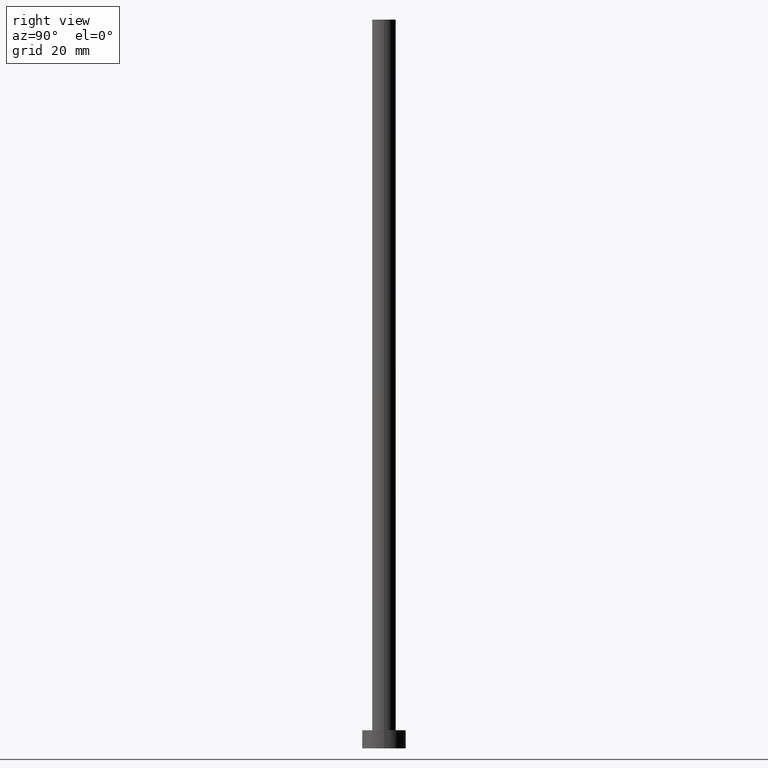
[diagram: clean part render]
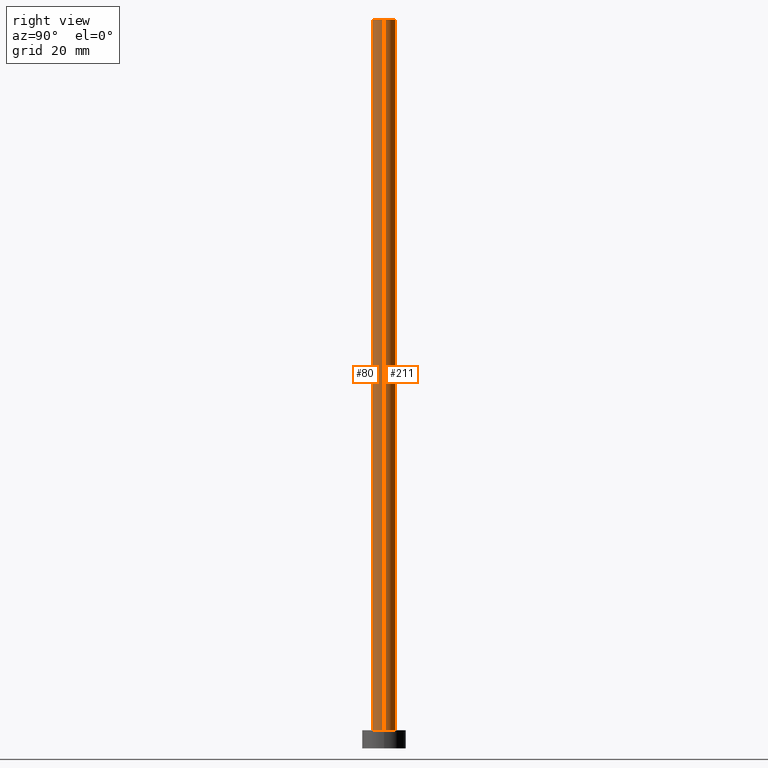
[diagram: same view with one multi-face feature highlighted, each face labeled with its STEP entity id]
A machine part, right view. The highlighted faces form ONE feature: a constant-radius fillet chain: 2 tangent blend faces with common blend radius 3.25 mm. The faces share edges in the B-rep.
Their STEP definitions:
[1] entity #211 (Cylinder):
#2 = DIRECTION ( 'NONE',  ( -0.000000000000000000, -0.000000000000000000, -1.000000000000000000 ) ) ;
#7 = LINE ( 'NONE', #101, #243 ) ;
#10 = DIRECTION ( 'NONE',  ( -0.000000000000000000, -0.000000000000000000, -1.000000000000000000 ) ) ;
#15 = DIRECTION ( 'NONE',  ( 0.000000000000000000, 0.000000000000000000, 1.000000000000000000 ) ) ;
#26 = LINE ( 'NONE', #190, #117 ) ;
#28 = VERTEX_POINT ( 'NONE', #96 ) ;
#32 = VERTEX_POINT ( 'NONE', #91 ) ;
#37 = CARTESIAN_POINT ( 'NONE',  ( 3.250000000000000444, 3.980102097228898231E-16, 5.000000000000000000 ) ) ;
#38 = DIRECTION ( 'NONE',  ( -0.000000000000000000, -0.000000000000000000, -1.000000000000000000 ) ) ;
#44 = AXIS2_PLACEMENT_3D ( 'NONE', #99, #10, #79 ) ;
#62 = ORIENTED_EDGE ( 'NONE', *, *, #197, .F. ) ;
#74 = DIRECTION ( 'NONE',  ( 1.000000000000000000, 0.000000000000000000, 0.000000000000000000 ) ) ;
#79 = DIRECTION ( 'NONE',  ( -1.000000000000000000, 0.000000000000000000, 0.000000000000000000 ) ) ;
#81 = EDGE_CURVE ( 'NONE', #246, #32, #136, .T. ) ;
#82 = ORIENTED_EDGE ( 'NONE', *, *, #90, .F. ) ;
#87 = ORIENTED_EDGE ( 'NONE', *, *, #81, .T. ) ;
#90 = EDGE_CURVE ( 'NONE', #161, #28, #242, .T. ) ;
#91 = CARTESIAN_POINT ( 'NONE',  ( -3.250000000000000444, 0.000000000000000000, 5.000000000000000000 ) ) ;
#96 = CARTESIAN_POINT ( 'NONE',  ( -3.250000000000000444, 0.000000000000000000, 200.0000000000000000 ) ) ;
#97 = CARTESIAN_POINT ( 'NONE',  ( 0.000000000000000000, 0.000000000000000000, 5.000000000000000000 ) ) ;
#99 = CARTESIAN_POINT ( 'NONE',  ( 0.000000000000000000, 0.000000000000000000, 200.0000000000000000 ) ) ;
#101 = CARTESIAN_POINT ( 'NONE',  ( 3.250000000000000444, 3.980102097228898231E-16, 200.0000000000000000 ) ) ;
#117 = VECTOR ( 'NONE', #2, 1000.000000000000000 ) ;
#128 = CARTESIAN_POINT ( 'NONE',  ( 0.000000000000000000, 0.000000000000000000, 200.0000000000000000 ) ) ;
#136 = CIRCLE ( 'NONE', #166, 3.250000000000000444 ) ;
#138 = EDGE_LOOP ( 'NONE', ( #82, #177, #87, #62 ) ) ;
#161 = VERTEX_POINT ( 'NONE', #185 ) ;
#164 = DIRECTION ( 'NONE',  ( 0.000000000000000000, 0.000000000000000000, 1.000000000000000000 ) ) ;
#166 = AXIS2_PLACEMENT_3D ( 'NONE', #97, #15, #255 ) ;
#171 = FACE_OUTER_BOUND ( 'NONE', #138, .T. ) ;
#177 = ORIENTED_EDGE ( 'NONE', *, *, #184, .T. ) ;
#184 = EDGE_CURVE ( 'NONE', #161, #246, #7, .T. ) ;
#185 = CARTESIAN_POINT ( 'NONE',  ( 3.250000000000000444, 3.980102097228898231E-16, 200.0000000000000000 ) ) ;
#190 = CARTESIAN_POINT ( 'NONE',  ( -3.250000000000000444, 0.000000000000000000, 200.0000000000000000 ) ) ;
#191 = AXIS2_PLACEMENT_3D ( 'NONE', #128, #164, #74 ) ;
#197 = EDGE_CURVE ( 'NONE', #28, #32, #26, .T. ) ;
#211 = ADVANCED_FACE ( 'NONE', ( #171 ), #241, .T. ) ;
#241 = CYLINDRICAL_SURFACE ( 'NONE', #44, 3.250000000000000444 ) ;
#242 = CIRCLE ( 'NONE', #191, 3.250000000000000444 ) ;
#243 = VECTOR ( 'NONE', #38, 1000.000000000000000 ) ;
#246 = VERTEX_POINT ( 'NONE', #37 ) ;
#255 = DIRECTION ( 'NONE',  ( 1.000000000000000000, 0.000000000000000000, 0.000000000000000000 ) ) ;
[2] entity #80 (Cylinder):
#2 = DIRECTION ( 'NONE',  ( -0.000000000000000000, -0.000000000000000000, -1.000000000000000000 ) ) ;
#7 = LINE ( 'NONE', #101, #243 ) ;
#8 = CIRCLE ( 'NONE', #61, 3.250000000000000444 ) ;
#12 = EDGE_CURVE ( 'NONE', #32, #246, #8, .T. ) ;
#13 = EDGE_LOOP ( 'NONE', ( #206, #45, #140, #106 ) ) ;
#14 = CARTESIAN_POINT ( 'NONE',  ( 0.000000000000000000, 0.000000000000000000, 200.0000000000000000 ) ) ;
#20 = FACE_OUTER_BOUND ( 'NONE', #13, .T. ) ;
#26 = LINE ( 'NONE', #190, #117 ) ;
#28 = VERTEX_POINT ( 'NONE', #96 ) ;
#32 = VERTEX_POINT ( 'NONE', #91 ) ;
#33 = CYLINDRICAL_SURFACE ( 'NONE', #208, 3.250000000000000444 ) ;
#34 = DIRECTION ( 'NONE',  ( 0.000000000000000000, 0.000000000000000000, 1.000000000000000000 ) ) ;
#37 = CARTESIAN_POINT ( 'NONE',  ( 3.250000000000000444, 3.980102097228898231E-16, 5.000000000000000000 ) ) ;
#38 = DIRECTION ( 'NONE',  ( -0.000000000000000000, -0.000000000000000000, -1.000000000000000000 ) ) ;
#45 = ORIENTED_EDGE ( 'NONE', *, *, #102, .F. ) ;
#52 = CARTESIAN_POINT ( 'NONE',  ( 0.000000000000000000, 0.000000000000000000, 5.000000000000000000 ) ) ;
#61 = AXIS2_PLACEMENT_3D ( 'NONE', #52, #34, #114 ) ;
#80 = ADVANCED_FACE ( 'NONE', ( #20 ), #33, .T. ) ;
#91 = CARTESIAN_POINT ( 'NONE',  ( -3.250000000000000444, 0.000000000000000000, 5.000000000000000000 ) ) ;
#96 = CARTESIAN_POINT ( 'NONE',  ( -3.250000000000000444, 0.000000000000000000, 200.0000000000000000 ) ) ;
#101 = CARTESIAN_POINT ( 'NONE',  ( 3.250000000000000444, 3.980102097228898231E-16, 200.0000000000000000 ) ) ;
#102 = EDGE_CURVE ( 'NONE', #28, #161, #127, .T. ) ;
#106 = ORIENTED_EDGE ( 'NONE', *, *, #12, .T. ) ;
#113 = DIRECTION ( 'NONE',  ( 0.000000000000000000, 0.000000000000000000, 1.000000000000000000 ) ) ;
#114 = DIRECTION ( 'NONE',  ( 1.000000000000000000, 0.000000000000000000, 0.000000000000000000 ) ) ;
#117 = VECTOR ( 'NONE', #2, 1000.000000000000000 ) ;
#127 = CIRCLE ( 'NONE', #230, 3.250000000000000444 ) ;
#130 = DIRECTION ( 'NONE',  ( -1.000000000000000000, 0.000000000000000000, 0.000000000000000000 ) ) ;
#131 = DIRECTION ( 'NONE',  ( 1.000000000000000000, 0.000000000000000000, 0.000000000000000000 ) ) ;
#140 = ORIENTED_EDGE ( 'NONE', *, *, #197, .T. ) ;
#153 = DIRECTION ( 'NONE',  ( -0.000000000000000000, -0.000000000000000000, -1.000000000000000000 ) ) ;
#161 = VERTEX_POINT ( 'NONE', #185 ) ;
#184 = EDGE_CURVE ( 'NONE', #161, #246, #7, .T. ) ;
#185 = CARTESIAN_POINT ( 'NONE',  ( 3.250000000000000444, 3.980102097228898231E-16, 200.0000000000000000 ) ) ;
#190 = CARTESIAN_POINT ( 'NONE',  ( -3.250000000000000444, 0.000000000000000000, 200.0000000000000000 ) ) ;
#197 = EDGE_CURVE ( 'NONE', #28, #32, #26, .T. ) ;
#206 = ORIENTED_EDGE ( 'NONE', *, *, #184, .F. ) ;
#208 = AXIS2_PLACEMENT_3D ( 'NONE', #14, #153, #130 ) ;
#230 = AXIS2_PLACEMENT_3D ( 'NONE', #237, #113, #131 ) ;
#237 = CARTESIAN_POINT ( 'NONE',  ( 0.000000000000000000, 0.000000000000000000, 200.0000000000000000 ) ) ;
#243 = VECTOR ( 'NONE', #38, 1000.000000000000000 ) ;
#246 = VERTEX_POINT ( 'NONE', #37 ) ;